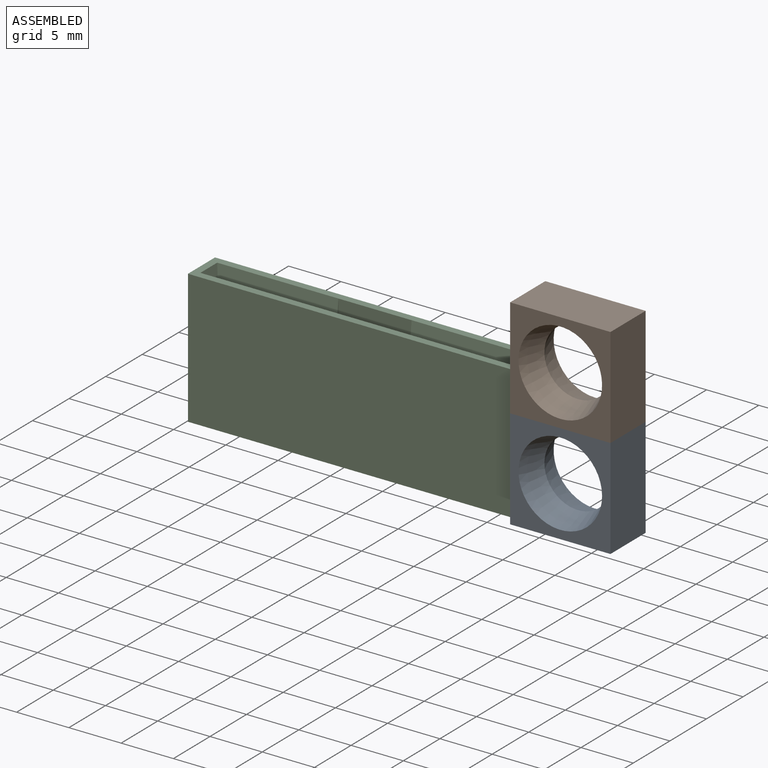
[diagram: assembled view]
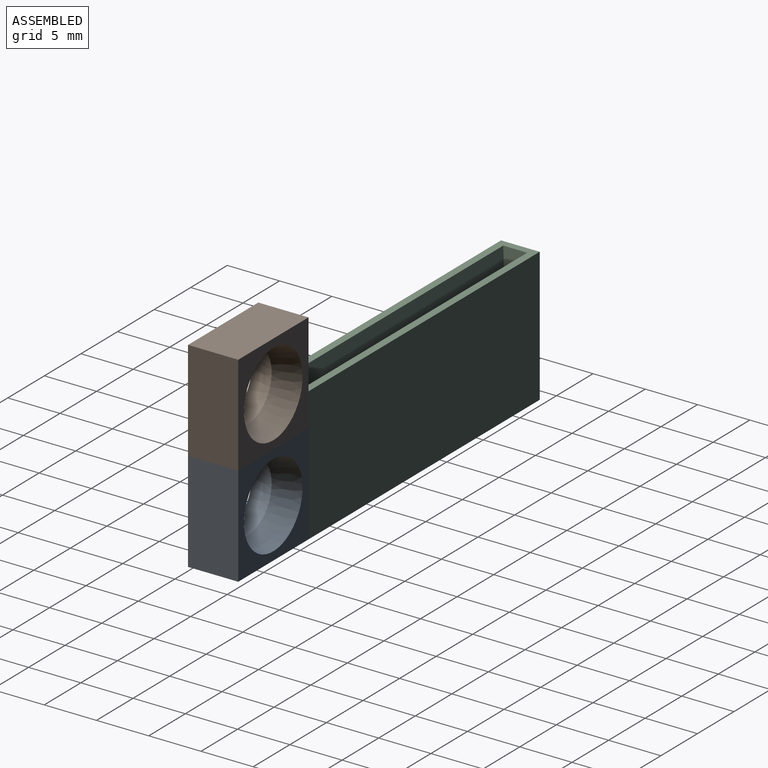
[diagram: assembled view, second angle]
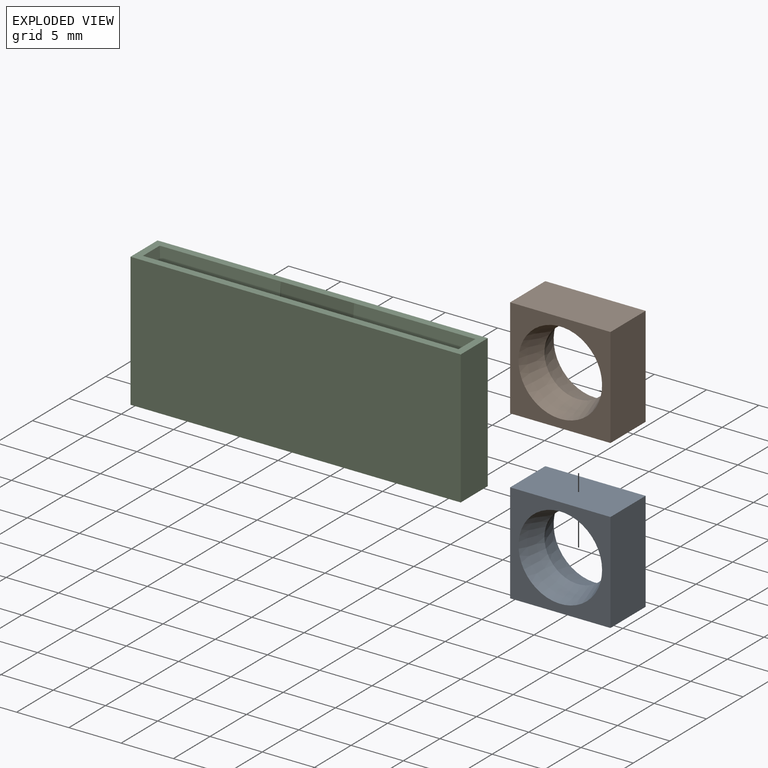
[diagram: exploded view]
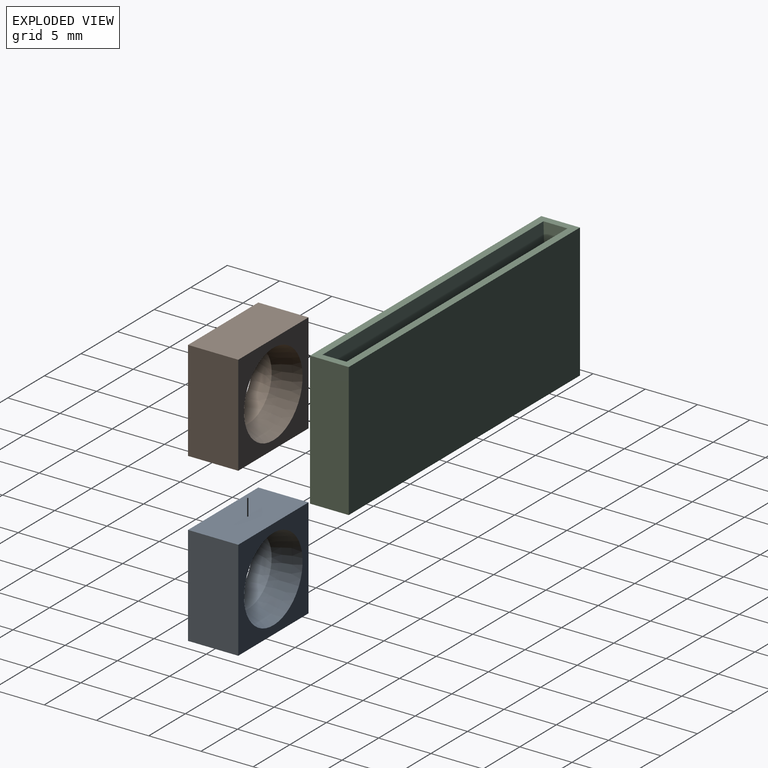
[diagram: exploded view, second angle]
ASSEMBLY  parts=3 mates=2
PART A: 8 faces, bbox 9.6x9.6x4.8 mm
  f0: plane 9.6x9.6mm, normal (0,0,1), area 41.9mm2, adj f2,f4,f5,f6,f7
  f1: plane 9.6x9.6mm, normal (0,0,-1), area 41.9mm2, adj f3,f4,f5,f6,f7
  f2: cone r=3.2mm half-angle=18.4deg, axis (0,0,1), area 57.2mm2, adj f0,f3
  f3: cone r=4mm half-angle=18.4deg, axis (0,0,-1), area 57.2mm2, adj f1,f2
  f4: plane 9.6x4.8mm, normal (0,1,0), area 46.1mm2, adj f0,f1,f5,f6
  f5: plane 9.6x4.8mm, normal (1,0,0), area 46.1mm2, adj f0,f1,f4,f7
  f6: plane 9.6x4.8mm, normal (-1,0,0), area 46.1mm2, adj f0,f1,f4,f7
  f7: plane 9.6x4.8mm, normal (0,-1,0), area 46.1mm2, adj f0,f1,f5,f6
PART B: same geometry as A
PART C: 20 faces, bbox 31.6x3.7x12.8 mm
  f0: plane 31.6x12.8mm, normal (0,1,0), area 404.5mm2, adj f1,f11,f12,f13
  f1: plane 12.8x3.7mm, normal (-1,0,0), area 47.4mm2, adj f0,f2,f12,f13
  f2: plane 31.6x12.8mm, normal (0,-1,0), area 404.5mm2, adj f1,f11,f12,f13
  f3: plane 6.4x0.3mm, normal (-1,0,0), area 1.5mm2, adj f4,f10,f14,f15
  f4: plane 11.3x3.4mm, normal (0,-1,0), area 38.4mm2, adj f3,f5,f14,f15
  f5: plane 3.4x1.7mm, normal (-1,0,0), area 5.8mm2, adj f4,f6,f14,f16
  f6: plane 29.6x3.4mm, normal (0,1,0), area 100.6mm2, adj f5,f7,f14,f17
  f7: plane 3.4x1.7mm, normal (1,0,0), area 5.8mm2, adj f6,f8,f14,f18
  f8: plane 11.3x3.4mm, normal (0,-1,0), area 38.4mm2, adj f7,f9,f14,f19
  f9: plane 6.4x0.3mm, normal (1,0,0), area 1.5mm2, adj f8,f10,f14,f19
  f10: plane 7x6.4mm, normal (0,-1,0), area 44.8mm2, adj f3,f9,f12,f14
  f11: plane 12.8x3.7mm, normal (1,0,0), area 47.4mm2, adj f0,f2,f12,f13
  f12: plane 31.6x3.7mm, normal (0,0,1), area 47.5mm2, adj f0,f1,f2,f10,f11,f15,f16,f17
  f13: plane 31.6x3.7mm, normal (0,0,-1), area 116.9mm2, adj f0,f1,f2,f11
  f14: plane 29.6x2mm, normal (0,0,1), area 52.4mm2, adj f3,f4,f5,f6,f7,f8,f9,f10
  f15: plane 11.6x3mm, normal (0,-1,0.1), area 34.5mm2, adj f3,f4,f12,f16
  f16: plane 3x2.3mm, normal (-1,0,0.1), area 6mm2, adj f5,f12,f15,f17
  f17: plane 30.2x3mm, normal (0,1,0.1), area 90.1mm2, adj f6,f12,f16,f18
  f18: plane 3x2.3mm, normal (1,0,0.1), area 6mm2, adj f7,f12,f17,f19
  f19: plane 11.6x3mm, normal (0,-1,0.1), area 34.5mm2, adj f8,f9,f12,f18
PLACE A rot(axis=(1,0,0),90deg) t=(15.22,3.08,-10.95)mm
PLACE B rot(axis=(0.58,0.58,-0.58),120deg) t=(-0.78,3.08,14.65)mm
PLACE C t=(-5.38,1.23,0.25)mm
MATE fastened A.f6 <-> C.f11  axis (-1,0,0) through (10.42,3.08,0.25)mm
MATE fastened B.f5 <-> A.f4  axis (0,0,-1) through (15.22,0.68,9.85)mm
